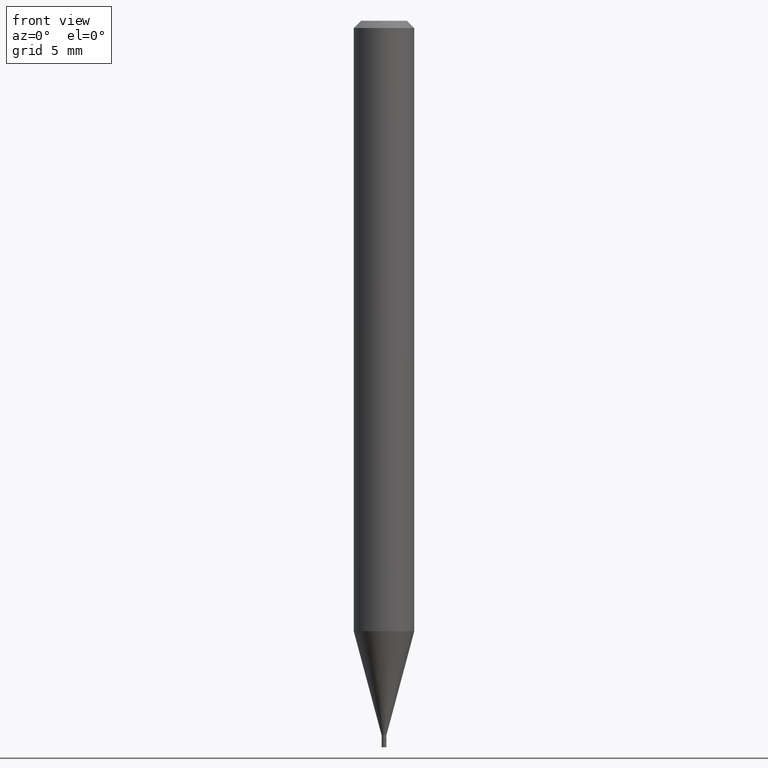
[diagram: clean part render]
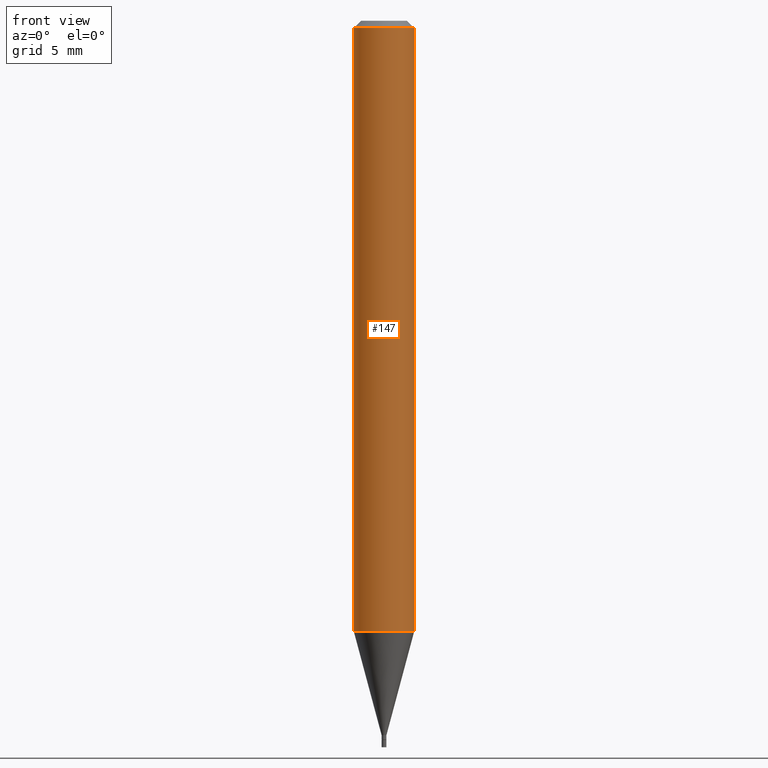
[diagram: same view with one face highlighted and labeled with its STEP entity id]
A machine part, front view. The second image highlights one B-rep face of the part: STEP entity #147.
In plain terms, the highlighted cylindrical surface (edge-blend (fillet) strip) has radius 1.5875 mm, axis along (-0, 0, 1).
Its self-contained STEP definition (entity closure, byte-faithful):
#5 = EDGE_LOOP ( 'NONE', ( #176, #159, #215, #195 ) ) ;
#10 = CIRCLE ( 'NONE', #452, 0.06250000000000000000 ) ;
#31 = DIRECTION ( 'NONE',  ( 1.000000000000000000, -6.982962677686266711E-15, 4.876176775795935793E-29 ) ) ;
#49 = DIRECTION ( 'NONE',  ( -2.445468806185136597E-29, 3.491481338843145583E-15, 1.000000000000000000 ) ) ;
#59 = DIRECTION ( 'NONE',  ( -2.445468806185136877E-29, 3.491481338843145188E-15, 1.000000000000000000 ) ) ;
#71 = DIRECTION ( 'NONE',  ( 1.000000000000000000, -6.982962677686262766E-15, 0.000000000000000000 ) ) ;
#78 = AXIS2_PLACEMENT_3D ( 'NONE', #101, #267, #31 ) ;
#94 = DIRECTION ( 'NONE',  ( 1.000000000000000000, -6.982962677686266711E-15, 0.000000000000000000 ) ) ;
#96 = EDGE_CURVE ( 'NONE', #412, #183, #189, .T. ) ;
#101 = CARTESIAN_POINT ( 'NONE',  ( 0.000000000000000000, 0.000000000000000000, 0.000000000000000000 ) ) ;
#104 = AXIS2_PLACEMENT_3D ( 'NONE', #364, #49, #94 ) ;
#125 = EDGE_CURVE ( 'NONE', #218, #412, #156, .T. ) ;
#133 = CYLINDRICAL_SURFACE ( 'NONE', #78, 0.06250000000000000000 ) ;
#147 = ADVANCED_FACE ( 'NONE', ( #269 ), #133, .T. ) ;
#150 = VECTOR ( 'NONE', #59, 39.37007874015748143 ) ;
#156 = LINE ( 'NONE', #443, #266 ) ;
#159 = ORIENTED_EDGE ( 'NONE', *, *, #307, .T. ) ;
#167 = CARTESIAN_POINT ( 'NONE',  ( 0.06250000000000000000, -4.364351673553916694E-16, 3.047610484872459871E-30 ) ) ;
#176 = ORIENTED_EDGE ( 'NONE', *, *, #125, .F. ) ;
#183 = VERTEX_POINT ( 'NONE', #373 ) ;
#189 = CIRCLE ( 'NONE', #104, 0.06250000000000000000 ) ;
#195 = ORIENTED_EDGE ( 'NONE', *, *, #96, .F. ) ;
#208 = CARTESIAN_POINT ( 'NONE',  ( 0.06249999999999999306, -4.837122961510163228E-15, -1.260407078564790062 ) ) ;
#215 = ORIENTED_EDGE ( 'NONE', *, *, #289, .T. ) ;
#218 = VERTEX_POINT ( 'NONE', #415 ) ;
#266 = VECTOR ( 'NONE', #272, 39.37007874015748143 ) ;
#267 = DIRECTION ( 'NONE',  ( -2.445468806185136597E-29, 3.491481338843145583E-15, 1.000000000000000000 ) ) ;
#268 = DIRECTION ( 'NONE',  ( -2.445468806185136597E-29, 3.491481338843145583E-15, 1.000000000000000000 ) ) ;
#269 = FACE_OUTER_BOUND ( 'NONE', #5, .T. ) ;
#272 = DIRECTION ( 'NONE',  ( -2.445468806185136877E-29, 3.491481338843145188E-15, 1.000000000000000000 ) ) ;
#289 = EDGE_CURVE ( 'NONE', #359, #183, #310, .T. ) ;
#307 = EDGE_CURVE ( 'NONE', #218, #359, #10, .T. ) ;
#310 = LINE ( 'NONE', #167, #150 ) ;
#338 = CARTESIAN_POINT ( 'NONE',  ( 3.082286193725132894E-29, -4.400687794154770769E-15, -1.260407078564790062 ) ) ;
#348 = CARTESIAN_POINT ( 'NONE',  ( -0.06250000000000000000, -1.782440797268646111E-15, -0.01499999999999999944 ) ) ;
#359 = VERTEX_POINT ( 'NONE', #208 ) ;
#364 = CARTESIAN_POINT ( 'NONE',  ( 3.668203209277705088E-31, -5.237222008264718399E-17, -0.01499999999999999944 ) ) ;
#373 = CARTESIAN_POINT ( 'NONE',  ( 0.06250000000000000000, -4.888073874380388472E-16, -0.01499999999999999944 ) ) ;
#412 = VERTEX_POINT ( 'NONE', #348 ) ;
#415 = CARTESIAN_POINT ( 'NONE',  ( -0.06249999999999999306, -3.956598584304708153E-15, -1.260407078564790062 ) ) ;
#443 = CARTESIAN_POINT ( 'NONE',  ( -0.06250000000000000000, 4.440892098500626162E-16, -3.074334431409316114E-30 ) ) ;
#452 = AXIS2_PLACEMENT_3D ( 'NONE', #338, #268, #71 ) ;